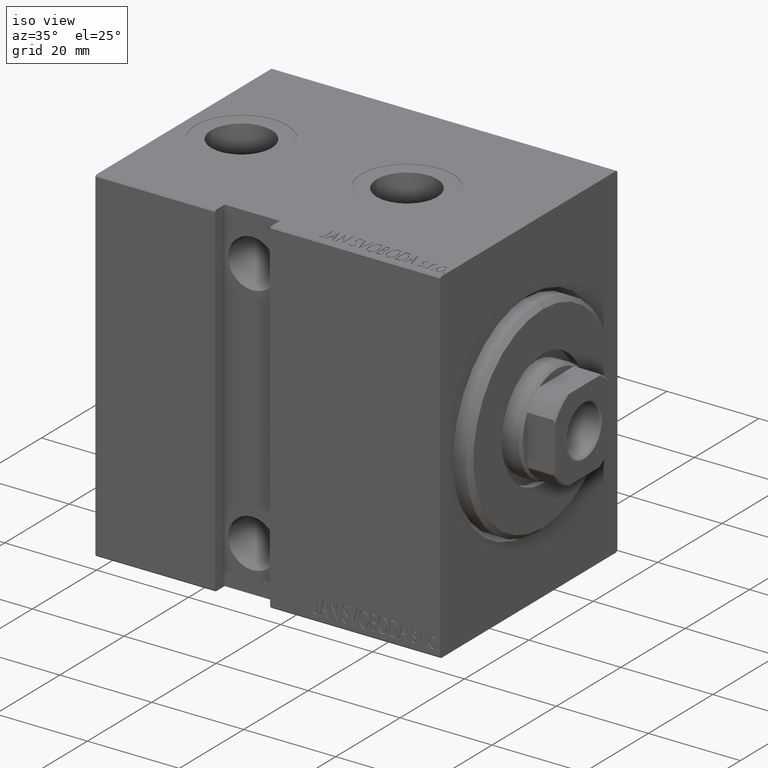
[diagram: clean part render]
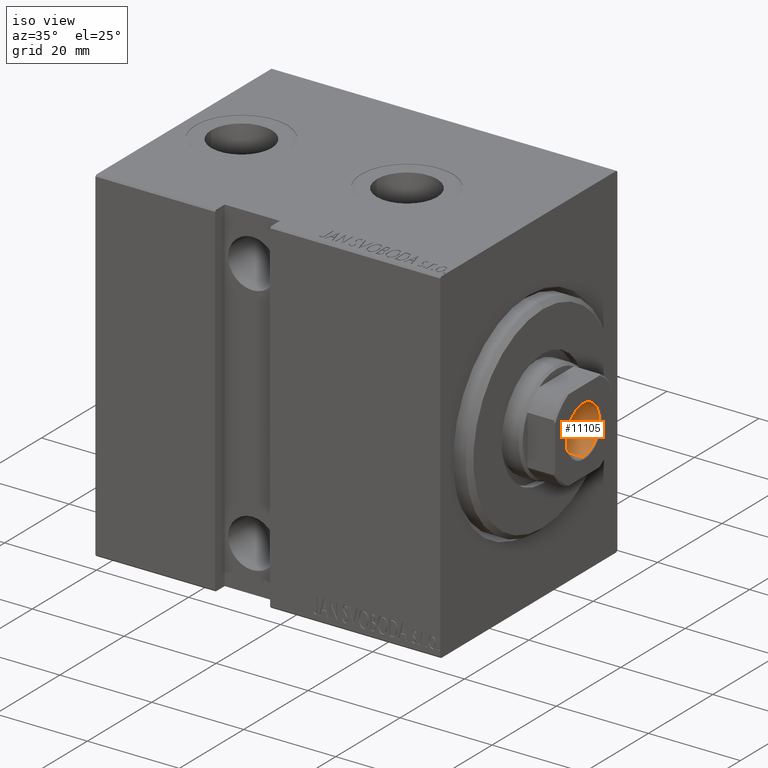
[diagram: same view with one face highlighted and labeled with its STEP entity id]
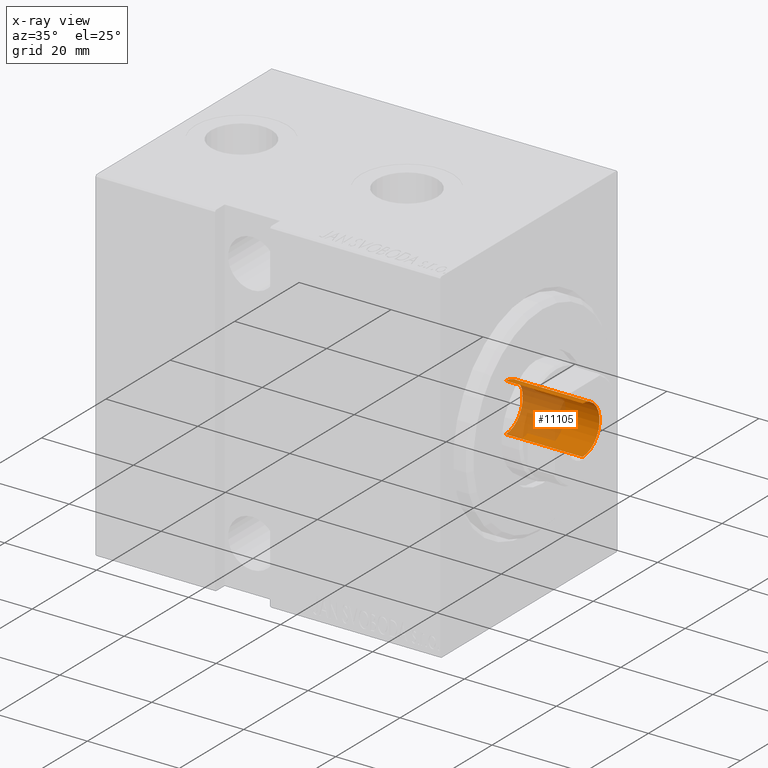
[diagram: x-ray of the same camera — body ghosted, the highlighted face saturated]
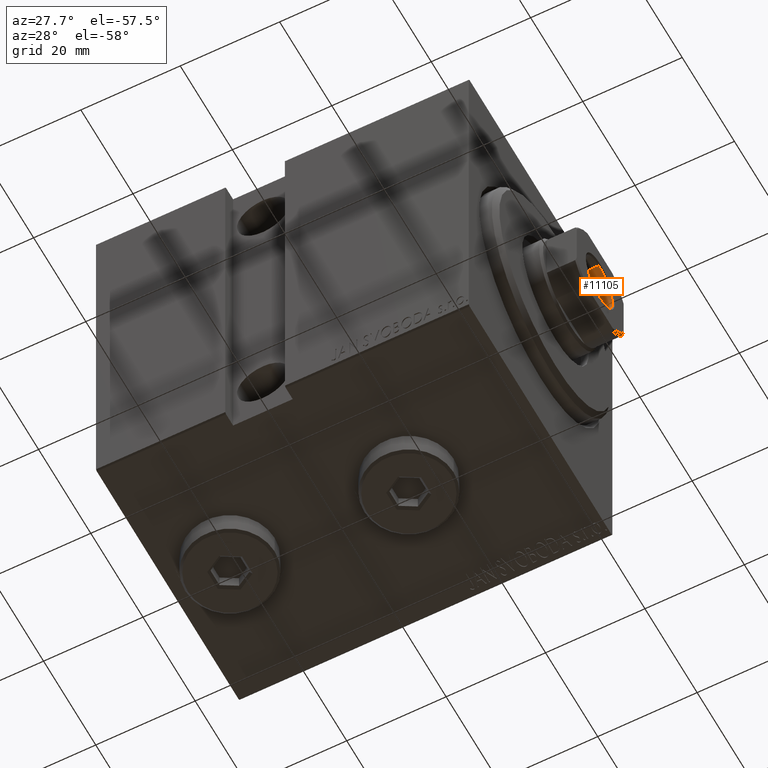
[diagram: same view with one face highlighted and labeled with its STEP entity id]
A machine part, iso view. The second image highlights one B-rep face of the part: STEP entity #11105.
The next image is the same camera in x-ray: the body ghosted, the highlighted face saturated — about 46% of this face is hidden behind the body in this view.
A second angle (auxiliary view) of the same face is appended — the face is thin or edge-on in the first view.
In plain terms, the highlighted cylindrical surface (edge-blend (fillet) strip) has radius 5.25 mm, axis along (1, 0, -0).
Its self-contained STEP definition (entity closure, byte-faithful):
#1608 = VERTEX_POINT ( 'NONE', #27506 ) ;
#1939 = DIRECTION ( 'NONE',  ( 1.000000000000000000, 0.000000000000000000, 0.000000000000000000 ) ) ;
#2754 = DIRECTION ( 'NONE',  ( 0.000000000000000000, 0.000000000000000000, 1.000000000000000000 ) ) ;
#5570 = CARTESIAN_POINT ( 'NONE',  ( 0.000000000000000000, 0.000000000000000000, 77.00000000000001421 ) ) ;
#6443 = CYLINDRICAL_SURFACE ( 'NONE', #6505, 5.249999999999996447 ) ;
#6491 = EDGE_CURVE ( 'NONE', #37468, #1608, #7233, .T. ) ;
#6505 = AXIS2_PLACEMENT_3D ( 'NONE', #5570, #32922, #29397 ) ;
#6824 = CARTESIAN_POINT ( 'NONE',  ( -5.249999999999996447, 6.429395695523600208E-16, 77.00000000000001421 ) ) ;
#7233 = CIRCLE ( 'NONE', #28560, 5.249999999999996447 ) ;
#8985 = LINE ( 'NONE', #43640, #35060 ) ;
#9856 = CARTESIAN_POINT ( 'NONE',  ( 0.000000000000000000, 0.000000000000000000, 76.70000000000000284 ) ) ;
#11105 = ADVANCED_FACE ( 'NONE', ( #15817 ), #6443, .F. ) ;
#14092 = VERTEX_POINT ( 'NONE', #33114 ) ;
#15311 = CIRCLE ( 'NONE', #40823, 5.249999999999995559 ) ;
#15817 = FACE_OUTER_BOUND ( 'NONE', #17603, .T. ) ;
#16088 = VECTOR ( 'NONE', #30623, 1000.000000000000000 ) ;
#16682 = EDGE_CURVE ( 'NONE', #32825, #37468, #8985, .T. ) ;
#17603 = EDGE_LOOP ( 'NONE', ( #28514, #23117, #21627, #31135 ) ) ;
#19614 = EDGE_CURVE ( 'NONE', #32825, #14092, #15311, .T. ) ;
#21627 = ORIENTED_EDGE ( 'NONE', *, *, #16682, .T. ) ;
#23117 = ORIENTED_EDGE ( 'NONE', *, *, #19614, .F. ) ;
#27506 = CARTESIAN_POINT ( 'NONE',  ( -5.249999999999996447, 6.429395695523600208E-16, 76.70000000000000284 ) ) ;
#28514 = ORIENTED_EDGE ( 'NONE', *, *, #28899, .F. ) ;
#28560 = AXIS2_PLACEMENT_3D ( 'NONE', #9856, #2754, #1939 ) ;
#28856 = DIRECTION ( 'NONE',  ( -0.000000000000000000, -0.000000000000000000, 1.000000000000000000 ) ) ;
#28899 = EDGE_CURVE ( 'NONE', #14092, #1608, #37279, .T. ) ;
#29397 = DIRECTION ( 'NONE',  ( 1.000000000000000000, 0.000000000000000000, 0.000000000000000000 ) ) ;
#30553 = CARTESIAN_POINT ( 'NONE',  ( 5.249999999999995559, 0.000000000000000000, 60.00000000000001421 ) ) ;
#30623 = DIRECTION ( 'NONE',  ( -0.000000000000000000, -0.000000000000000000, 1.000000000000000000 ) ) ;
#31135 = ORIENTED_EDGE ( 'NONE', *, *, #6491, .T. ) ;
#32825 = VERTEX_POINT ( 'NONE', #30553 ) ;
#32922 = DIRECTION ( 'NONE',  ( -0.000000000000000000, -0.000000000000000000, 1.000000000000000000 ) ) ;
#33114 = CARTESIAN_POINT ( 'NONE',  ( -5.249999999999995559, 6.429395695523600208E-16, 60.00000000000001421 ) ) ;
#35060 = VECTOR ( 'NONE', #40307, 1000.000000000000000 ) ;
#35939 = CARTESIAN_POINT ( 'NONE',  ( 0.000000000000000000, 0.000000000000000000, 60.00000000000001421 ) ) ;
#36774 = CARTESIAN_POINT ( 'NONE',  ( 5.249999999999996447, 0.000000000000000000, 76.70000000000000284 ) ) ;
#37279 = LINE ( 'NONE', #6824, #16088 ) ;
#37468 = VERTEX_POINT ( 'NONE', #36774 ) ;
#40307 = DIRECTION ( 'NONE',  ( -0.000000000000000000, -0.000000000000000000, 1.000000000000000000 ) ) ;
#40823 = AXIS2_PLACEMENT_3D ( 'NONE', #35939, #28856, #42828 ) ;
#42828 = DIRECTION ( 'NONE',  ( 1.000000000000000000, 0.000000000000000000, 0.000000000000000000 ) ) ;
#43640 = CARTESIAN_POINT ( 'NONE',  ( 5.249999999999996447, 0.000000000000000000, 77.00000000000001421 ) ) ;